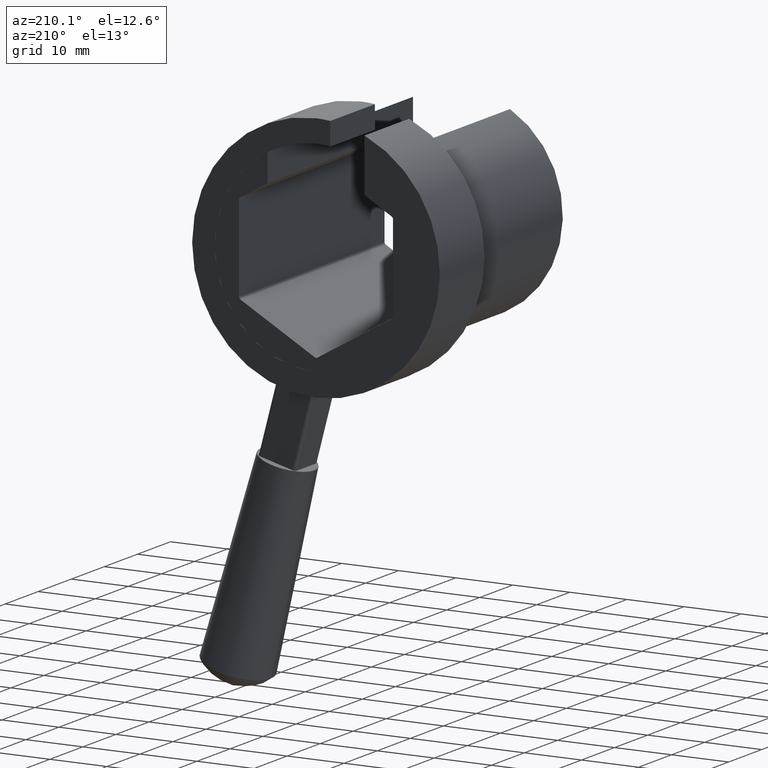
[diagram: clean part render]
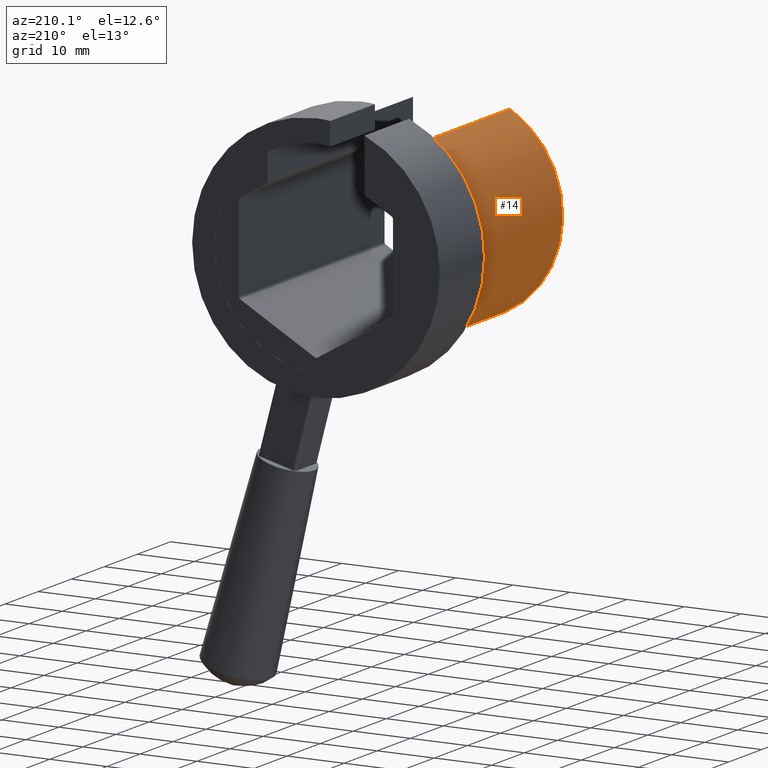
[diagram: same view with one face highlighted and labeled with its STEP entity id]
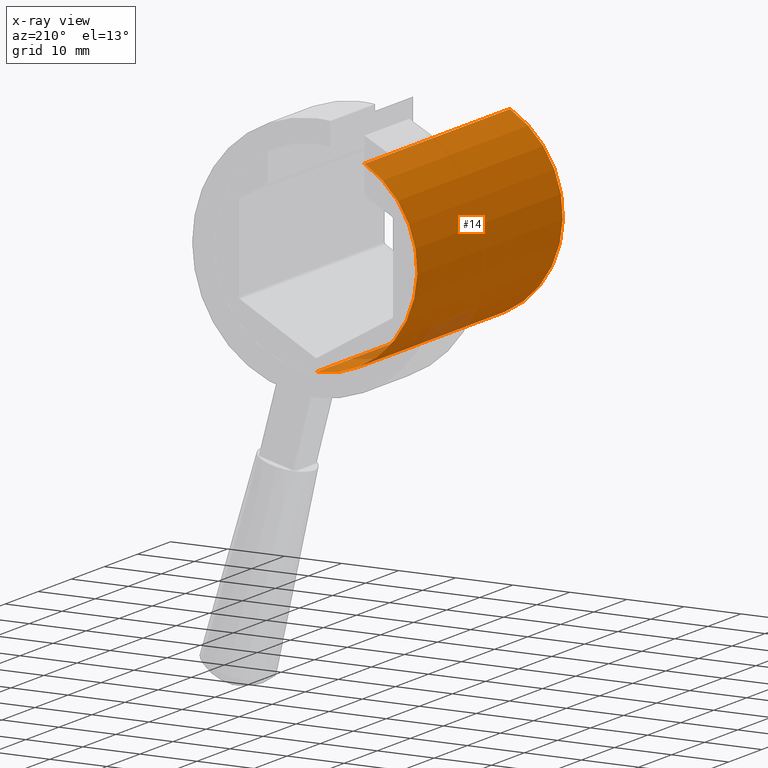
[diagram: x-ray of the same camera — body ghosted, the highlighted face saturated]
A machine part, auxiliary view. The second image highlights one B-rep face of the part: STEP entity #14.
The next image is the same camera in x-ray: the body ghosted, the highlighted face saturated — about 3% of this face is hidden behind the body in this view.
In plain terms, the highlighted cylindrical surface (partial cylindrical patch) has radius 17.75 mm, axis along (0, -1, 0).
Its self-contained STEP definition (entity closure, byte-faithful):
#3 = EDGE_CURVE ( 'NONE', #17, #97, #391, .T. ) ;
#6 = VERTEX_POINT ( 'NONE', #386 ) ;
#8 = ORIENTED_EDGE ( 'NONE', *, *, #3, .T. ) ;
#14 = ADVANCED_FACE ( 'NONE', ( #337 ), #332, .T. ) ;
#15 = EDGE_CURVE ( 'NONE', #17, #6, #327, .T. ) ;
#16 = ORIENTED_EDGE ( 'NONE', *, *, #15, .F. ) ;
#17 = VERTEX_POINT ( 'NONE', #322 ) ;
#30 = EDGE_LOOP ( 'NONE', ( #16, #8, #98, #101 ) ) ;
#97 = VERTEX_POINT ( 'NONE', #575 ) ;
#98 = ORIENTED_EDGE ( 'NONE', *, *, #99, .T. ) ;
#99 = EDGE_CURVE ( 'NONE', #97, #100, #574, .T. ) ;
#100 = VERTEX_POINT ( 'NONE', #569 ) ;
#101 = ORIENTED_EDGE ( 'NONE', *, *, #102, .F. ) ;
#102 = EDGE_CURVE ( 'NONE', #6, #100, #568, .T. ) ;
#322 = CARTESIAN_POINT ( 'NONE',  ( 0.0000000000000000000, 44.00000000000000000, -17.75000000000000000 ) ) ;
#323 = DIRECTION ( 'NONE',  ( 0.0000000000000000000, 0.0000000000000000000, 1.000000000000000000 ) ) ;
#324 = DIRECTION ( 'NONE',  ( 0.0000000000000000000, 1.000000000000000000, 0.0000000000000000000 ) ) ;
#325 = CARTESIAN_POINT ( 'NONE',  ( 0.0000000000000000000, 44.00000000000000000, 0.0000000000000000000 ) ) ;
#326 = AXIS2_PLACEMENT_3D ( 'NONE', #325, #324, #323 ) ;
#327 = CIRCLE ( 'NONE', #326, 17.75000000000000000 ) ;
#328 = DIRECTION ( 'NONE',  ( 0.0000000000000000000, 0.0000000000000000000, -1.000000000000000000 ) ) ;
#329 = DIRECTION ( 'NONE',  ( 0.0000000000000000000, -1.000000000000000000, 0.0000000000000000000 ) ) ;
#330 = CARTESIAN_POINT ( 'NONE',  ( 0.0000000000000000000, 44.00000000000000000, 0.0000000000000000000 ) ) ;
#331 = AXIS2_PLACEMENT_3D ( 'NONE', #330, #329, #328 ) ;
#332 = CYLINDRICAL_SURFACE ( 'NONE', #331, 17.75000000000000000 ) ;
#337 = FACE_OUTER_BOUND ( 'NONE', #30, .T. ) ;
#386 = CARTESIAN_POINT ( 'NONE',  ( -8.499999999999998200, 44.00000000000000000, 15.58244204224742000 ) ) ;
#388 = DIRECTION ( 'NONE',  ( 0.0000000000000000000, -1.000000000000000000, 0.0000000000000000000 ) ) ;
#389 = VECTOR ( 'NONE', #388, 1000.000000000000000 ) ;
#390 = CARTESIAN_POINT ( 'NONE',  ( 0.0000000000000000000, 44.00000000000000000, -17.75000000000000000 ) ) ;
#391 = LINE ( 'NONE', #390, #389 ) ;
#565 = DIRECTION ( 'NONE',  ( 0.0000000000000000000, -1.000000000000000000, 0.0000000000000000000 ) ) ;
#566 = VECTOR ( 'NONE', #565, 1000.000000000000000 ) ;
#567 = CARTESIAN_POINT ( 'NONE',  ( -8.499999999999998200, 44.00000000000000000, 15.58244204224742000 ) ) ;
#568 = LINE ( 'NONE', #567, #566 ) ;
#569 = CARTESIAN_POINT ( 'NONE',  ( -8.499999999999998200, 0.0000000000000000000, 15.58244204224742000 ) ) ;
#570 = DIRECTION ( 'NONE',  ( 0.0000000000000000000, 0.0000000000000000000, 1.000000000000000000 ) ) ;
#571 = DIRECTION ( 'NONE',  ( 0.0000000000000000000, 1.000000000000000000, 0.0000000000000000000 ) ) ;
#572 = CARTESIAN_POINT ( 'NONE',  ( 0.0000000000000000000, 0.0000000000000000000, 0.0000000000000000000 ) ) ;
#573 = AXIS2_PLACEMENT_3D ( 'NONE', #572, #571, #570 ) ;
#574 = CIRCLE ( 'NONE', #573, 17.75000000000000000 ) ;
#575 = CARTESIAN_POINT ( 'NONE',  ( 0.0000000000000000000, 0.0000000000000000000, -17.75000000000000000 ) ) ;